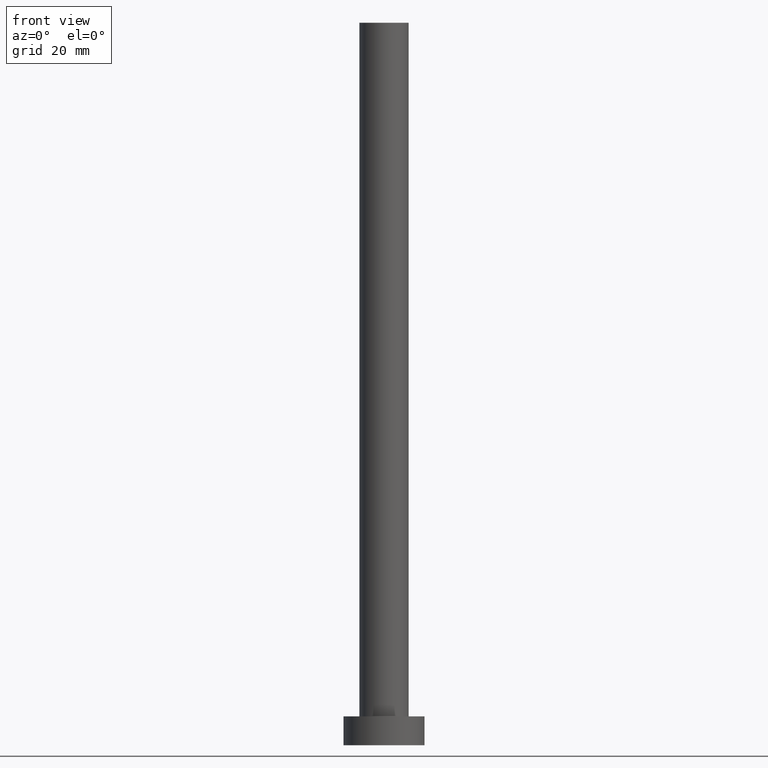
[diagram: clean part render]
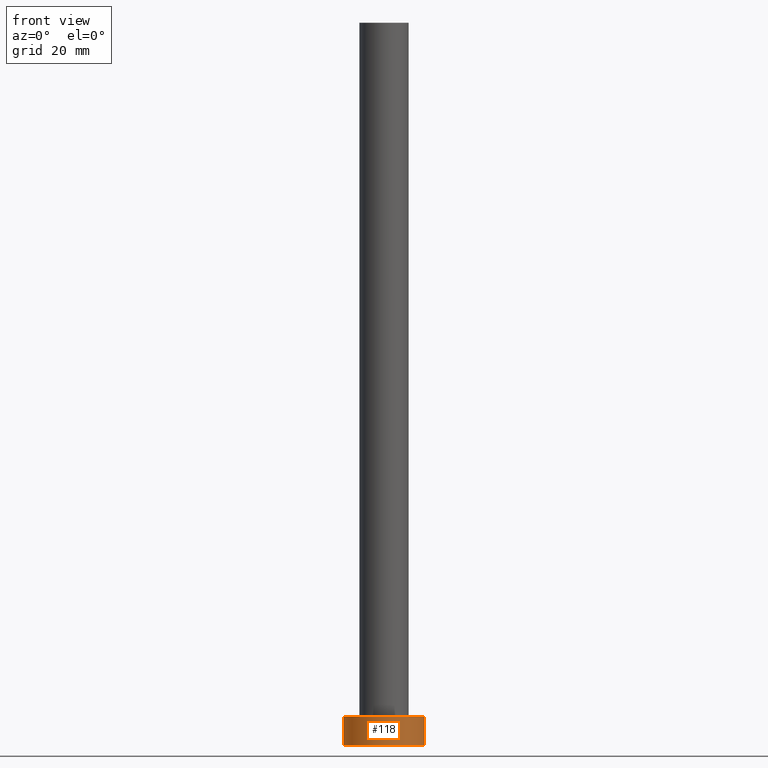
[diagram: same view with one face highlighted and labeled with its STEP entity id]
A machine part, front view. The second image highlights one B-rep face of the part: STEP entity #118.
In plain terms, the highlighted cylindrical surface (partial cylindrical patch) has radius 7 mm, axis along (-0, -0, -1).
Its self-contained STEP definition (entity closure, byte-faithful):
#10 = DIRECTION ( 'NONE',  ( 1.000000000000000000, 0.000000000000000000, 0.000000000000000000 ) ) ;
#11 = ORIENTED_EDGE ( 'NONE', *, *, #168, .T. ) ;
#13 = ORIENTED_EDGE ( 'NONE', *, *, #101, .F. ) ;
#18 = DIRECTION ( 'NONE',  ( -0.000000000000000000, -0.000000000000000000, -1.000000000000000000 ) ) ;
#19 = DIRECTION ( 'NONE',  ( -1.000000000000000000, 0.000000000000000000, 0.000000000000000000 ) ) ;
#20 = VECTOR ( 'NONE', #59, 1000.000000000000000 ) ;
#23 = VERTEX_POINT ( 'NONE', #173 ) ;
#33 = DIRECTION ( 'NONE',  ( 1.000000000000000000, 0.000000000000000000, 0.000000000000000000 ) ) ;
#35 = CARTESIAN_POINT ( 'NONE',  ( 7.000000000000000000, 8.572527594031473190E-16, 5.000000000000000000 ) ) ;
#40 = DIRECTION ( 'NONE',  ( -0.000000000000000000, -0.000000000000000000, -1.000000000000000000 ) ) ;
#48 = AXIS2_PLACEMENT_3D ( 'NONE', #75, #18, #19 ) ;
#58 = DIRECTION ( 'NONE',  ( 0.000000000000000000, 0.000000000000000000, 1.000000000000000000 ) ) ;
#59 = DIRECTION ( 'NONE',  ( -0.000000000000000000, -0.000000000000000000, -1.000000000000000000 ) ) ;
#61 = AXIS2_PLACEMENT_3D ( 'NONE', #210, #194, #10 ) ;
#68 = EDGE_CURVE ( 'NONE', #23, #138, #214, .T. ) ;
#72 = VERTEX_POINT ( 'NONE', #88 ) ;
#75 = CARTESIAN_POINT ( 'NONE',  ( 0.000000000000000000, 0.000000000000000000, 5.000000000000000000 ) ) ;
#88 = CARTESIAN_POINT ( 'NONE',  ( -7.000000000000000000, 0.000000000000000000, 0.000000000000000000 ) ) ;
#101 = EDGE_CURVE ( 'NONE', #138, #249, #124, .T. ) ;
#118 = ADVANCED_FACE ( 'NONE', ( #205 ), #142, .T. ) ;
#122 = LINE ( 'NONE', #217, #128 ) ;
#123 = EDGE_CURVE ( 'NONE', #72, #249, #167, .T. ) ;
#124 = LINE ( 'NONE', #35, #20 ) ;
#128 = VECTOR ( 'NONE', #40, 1000.000000000000000 ) ;
#138 = VERTEX_POINT ( 'NONE', #164 ) ;
#142 = CYLINDRICAL_SURFACE ( 'NONE', #48, 7.000000000000000000 ) ;
#164 = CARTESIAN_POINT ( 'NONE',  ( 7.000000000000000000, 8.572527594031473190E-16, 5.000000000000000000 ) ) ;
#167 = CIRCLE ( 'NONE', #201, 7.000000000000000000 ) ;
#168 = EDGE_CURVE ( 'NONE', #23, #72, #122, .T. ) ;
#173 = CARTESIAN_POINT ( 'NONE',  ( -7.000000000000000000, 0.000000000000000000, 5.000000000000000000 ) ) ;
#179 = ORIENTED_EDGE ( 'NONE', *, *, #123, .T. ) ;
#182 = CARTESIAN_POINT ( 'NONE',  ( 7.000000000000000000, 8.572527594031473190E-16, 0.000000000000000000 ) ) ;
#194 = DIRECTION ( 'NONE',  ( 0.000000000000000000, 0.000000000000000000, 1.000000000000000000 ) ) ;
#201 = AXIS2_PLACEMENT_3D ( 'NONE', #238, #58, #33 ) ;
#205 = FACE_OUTER_BOUND ( 'NONE', #234, .T. ) ;
#210 = CARTESIAN_POINT ( 'NONE',  ( 0.000000000000000000, 0.000000000000000000, 5.000000000000000000 ) ) ;
#214 = CIRCLE ( 'NONE', #61, 7.000000000000000000 ) ;
#217 = CARTESIAN_POINT ( 'NONE',  ( -7.000000000000000000, 0.000000000000000000, 5.000000000000000000 ) ) ;
#234 = EDGE_LOOP ( 'NONE', ( #13, #246, #11, #179 ) ) ;
#238 = CARTESIAN_POINT ( 'NONE',  ( 0.000000000000000000, 0.000000000000000000, 0.000000000000000000 ) ) ;
#246 = ORIENTED_EDGE ( 'NONE', *, *, #68, .F. ) ;
#249 = VERTEX_POINT ( 'NONE', #182 ) ;